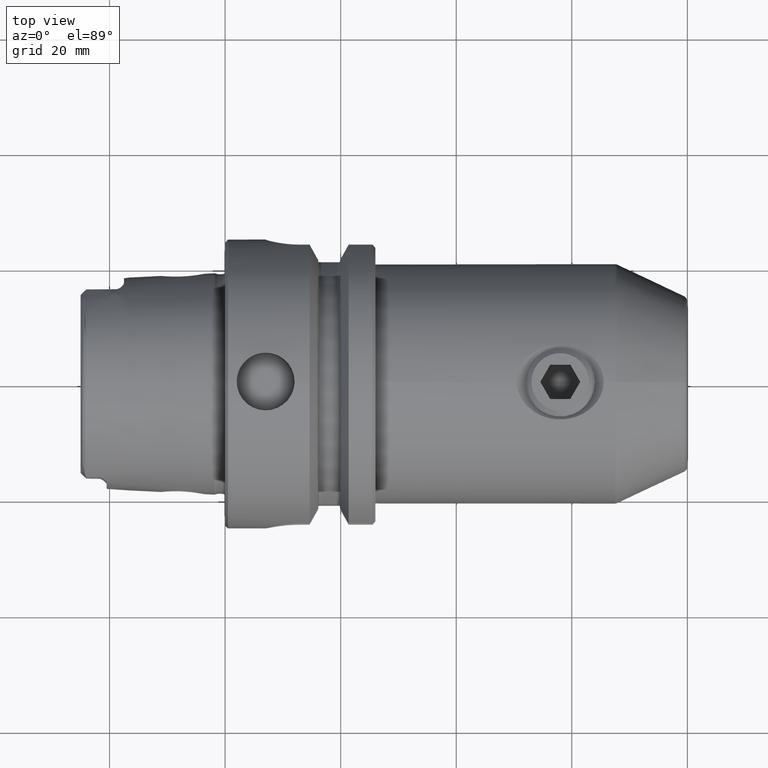
[diagram: clean part render]
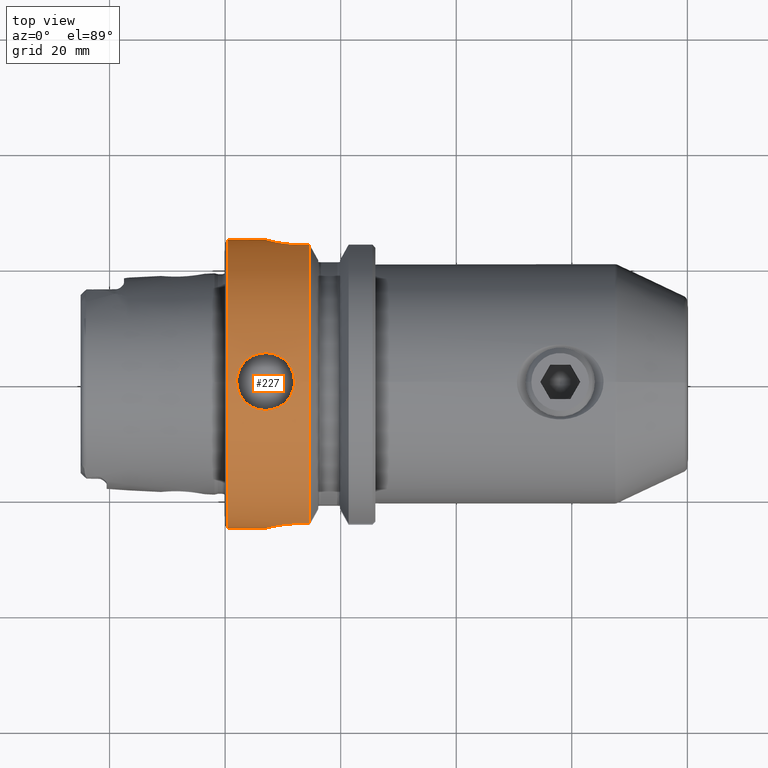
[diagram: same view with one face highlighted and labeled with its STEP entity id]
A machine part, top view. The second image highlights one B-rep face of the part: STEP entity #227.
In plain terms, the highlighted cylindrical surface (bore or boss wall) has radius 25 mm, axis along (1, -0, -0).
Its self-contained STEP definition (entity closure, byte-faithful):
#227 = ADVANCED_FACE( '', ( #585, #586, #587, #588 ), #589, .T. );
#585 = FACE_OUTER_BOUND( '', #1112, .T. );
#586 = FACE_BOUND( '', #1113, .T. );
#587 = FACE_OUTER_BOUND( '', #1114, .T. );
#588 = FACE_BOUND( '', #1115, .T. );
#589 = CYLINDRICAL_SURFACE( '', #1116, 25.0000000000000 );
#1112 = EDGE_LOOP( '', ( #1722 ) );
#1113 = EDGE_LOOP( '', ( #1723 ) );
#1114 = EDGE_LOOP( '', ( #1724, #1725, #1726, #1727, #1728, #1729, #1730, #1731, #1732, #1733, #1734, #1735, #1736, #1737 ) );
#1115 = EDGE_LOOP( '', ( #1738 ) );
#1116 = AXIS2_PLACEMENT_3D( '', #1739, #1740, #1741 );
#1722 = ORIENTED_EDGE( '', *, *, #2922, .F. );
#1723 = ORIENTED_EDGE( '', *, *, #2923, .F. );
#1724 = ORIENTED_EDGE( '', *, *, #2924, .T. );
#1725 = ORIENTED_EDGE( '', *, *, #2925, .T. );
#1726 = ORIENTED_EDGE( '', *, *, #2901, .F. );
#1727 = ORIENTED_EDGE( '', *, *, #2848, .F. );
#1728 = ORIENTED_EDGE( '', *, *, #2926, .F. );
#1729 = ORIENTED_EDGE( '', *, *, #2927, .F. );
#1730 = ORIENTED_EDGE( '', *, *, #2928, .F. );
#1731 = ORIENTED_EDGE( '', *, *, #2929, .T. );
#1732 = ORIENTED_EDGE( '', *, *, #2930, .T. );
#1733 = ORIENTED_EDGE( '', *, *, #2931, .T. );
#1734 = ORIENTED_EDGE( '', *, *, #2932, .T. );
#1735 = ORIENTED_EDGE( '', *, *, #2933, .T. );
#1736 = ORIENTED_EDGE( '', *, *, #2934, .T. );
#1737 = ORIENTED_EDGE( '', *, *, #2871, .T. );
#1738 = ORIENTED_EDGE( '', *, *, #2881, .F. );
#1739 = CARTESIAN_POINT( '', ( -60.0000000000000, 0.000000000000000, 0.000000000000000 ) );
#1740 = DIRECTION( '', ( 1.00000000000000, -0.000000000000000, -0.000000000000000 ) );
#1741 = DIRECTION( '', ( 0.000000000000000, 0.000000000000000, 1.00000000000000 ) );
#2848 = EDGE_CURVE( '', #3350, #3353, #3354, .T. );
#2871 = EDGE_CURVE( '', #3394, #3395, #3396, .T. );
#2881 = EDGE_CURVE( '', #3412, #3412, #3413, .T. );
#2901 = EDGE_CURVE( '', #3353, #3447, #3448, .F. );
#2922 = EDGE_CURVE( '', #3482, #3482, #3483, .T. );
#2923 = EDGE_CURVE( '', #3484, #3484, #3485, .T. );
#2924 = EDGE_CURVE( '', #3395, #3486, #3487, .F. );
#2925 = EDGE_CURVE( '', #3486, #3447, #3488, .T. );
#2926 = EDGE_CURVE( '', #3489, #3350, #3490, .F. );
#2927 = EDGE_CURVE( '', #3491, #3489, #3492, .T. );
#2928 = EDGE_CURVE( '', #3493, #3491, #3494, .T. );
#2929 = EDGE_CURVE( '', #3493, #3495, #3496, .T. );
#2930 = EDGE_CURVE( '', #3495, #3497, #3498, .T. );
#2931 = EDGE_CURVE( '', #3497, #3499, #3500, .T. );
#2932 = EDGE_CURVE( '', #3499, #3501, #3502, .F. );
#2933 = EDGE_CURVE( '', #3501, #3503, #3504, .T. );
#2934 = EDGE_CURVE( '', #3503, #3394, #3505, .T. );
#3350 = VERTEX_POINT( '', #4196 );
#3353 = VERTEX_POINT( '', #4200 );
#3354 = B_SPLINE_CURVE_WITH_KNOTS( '', 3, ( #4201, #4202, #4203, #4204, #4205, #4206, #4207, #4208, #4209, #4210, #4211, #4212, #4213, #4214, #4215, #4216, #4217, #4218, #4219, #4220 ), .UNSPECIFIED., .F., .F., ( 4, 2, 2, 2, 2, 2, 2, 2, 2, 4 ), ( 0.000000000000000, 0.00117891311180918, 0.00176836966771376, 0.00235782622361835, 0.00353673933542753, 0.00471565244723671, 0.00589456555904589, 0.00707347867085507, 0.00825239178266425, 0.00943130489447343 ), .UNSPECIFIED. );
#3394 = VERTEX_POINT( '', #4285 );
#3395 = VERTEX_POINT( '', #4286 );
#3396 = B_SPLINE_CURVE_WITH_KNOTS( '', 3, ( #4287, #4288, #4289, #4290, #4291, #4292, #4293, #4294, #4295, #4296, #4297, #4298, #4299, #4300, #4301, #4302, #4303, #4304, #4305, #4306, #4307, #4308, #4309, #4310, #4311, #4312, #4313, #4314, #4315, #4316, #4317, #4318, #4319, #4320, #4321, #4322, #4323, #4324, #4325, #4326 ), .UNSPECIFIED., .F., .F., ( 4, 2, 2, 2, 2, 2, 2, 2, 2, 2, 2, 2, 2, 2, 2, 2, 2, 2, 2, 4 ), ( 0.000000000000000, 0.00117637028899753, 0.00176455543349629, 0.00235274057799506, 0.00352911086699259, 0.00470548115599012, 0.00588185144498766, 0.00705822173398519, 0.00764640687848396, 0.00823459202298272, 0.00941096231198026, 0.0105873326009778, 0.0117637028899753, 0.0123518880344741, 0.0129400731789729, 0.0141164434679704, 0.0152928137569679, 0.0164691840459655, 0.0176455543349630, 0.0188219246239605 ), .UNSPECIFIED. );
#3412 = VERTEX_POINT( '', #4346 );
#3413 = B_SPLINE_CURVE_WITH_KNOTS( '', 3, ( #4347, #4348, #4349, #4350, #4351, #4352, #4353, #4354, #4355, #4356, #4357, #4358, #4359, #4360, #4361, #4362, #4363, #4364, #4365, #4366, #4367, #4368, #4369, #4370, #4371, #4372, #4373, #4374, #4375, #4376, #4377, #4378, #4379, #4380, #4381, #4382, #4383, #4384, #4385, #4386, #4387, #4388, #4389, #4390, #4391, #4392, #4393, #4394, #4395, #4396, #4397, #4398, #4399, #4400, #4401, #4402, #4403, #4404, #4405, #4406, #4407, #4408, #4409, #4410, #4411, #4412, #4413, #4414, #4415, #4416, #4417, #4418 ), .UNSPECIFIED., .T., .F., ( 2, 2, 2, 2, 2, 2, 2, 2, 2, 2, 2, 2, 2, 2, 2, 2, 2, 2, 2, 2, 2, 2, 2, 2, 2, 2, 2, 2, 2, 2, 2, 2, 2, 2, 2, 2, 2, 2 ), ( -0.000979360891067991, 0.000000000000000, 0.000979360891067992, 0.00195872178213598, 0.00293808267320398, 0.00391744356427197, 0.00489680445533996, 0.00587616534640795, 0.00685552623747595, 0.00783488712854394, 0.00881424801961193, 0.00979360891067992, 0.0102832893562139, 0.0107729698017479, 0.0117523306928159, 0.0127316915838839, 0.0137110524749519, 0.0146904133660199, 0.0156697742570879, 0.0166491351481559, 0.0176284960392239, 0.0181181764847579, 0.0186078569302919, 0.0195872178213599, 0.0205665787124279, 0.0215459396034959, 0.0225253004945639, 0.0235046613856319, 0.0244840222766999, 0.0254633831677679, 0.0264427440588359, 0.0269324245043699, 0.0274221049499039, 0.0284014658409719, 0.0293808267320399, 0.0303601876231078, 0.0313395485141758, 0.0323189094052438 ), .UNSPECIFIED. );
#3447 = VERTEX_POINT( '', #4485 );
#3448 = LINE( '', #4486, #4487 );
#3482 = VERTEX_POINT( '', #4565 );
#3483 = CIRCLE( '', #4566, 25.0000000000000 );
#3484 = VERTEX_POINT( '', #4567 );
#3485 = B_SPLINE_CURVE_WITH_KNOTS( '', 3, ( #4568, #4569, #4570, #4571, #4572, #4573, #4574, #4575, #4576, #4577, #4578, #4579, #4580, #4581, #4582, #4583, #4584, #4585, #4586, #4587, #4588, #4589, #4590, #4591, #4592, #4593, #4594, #4595, #4596, #4597, #4598, #4599, #4600, #4601, #4602, #4603, #4604, #4605, #4606, #4607, #4608, #4609, #4610, #4611, #4612, #4613, #4614, #4615, #4616, #4617, #4618, #4619, #4620, #4621, #4622, #4623, #4624, #4625, #4626, #4627, #4628, #4629, #4630, #4631, #4632, #4633, #4634, #4635, #4636, #4637, #4638, #4639 ), .UNSPECIFIED., .T., .F., ( 2, 2, 2, 2, 2, 2, 2, 2, 2, 2, 2, 2, 2, 2, 2, 2, 2, 2, 2, 2, 2, 2, 2, 2, 2, 2, 2, 2, 2, 2, 2, 2, 2, 2, 2, 2, 2, 2 ), ( -0.000979364598487321, 0.000000000000000, 0.000979364598487329, 0.00195872919697466, 0.00293809379546199, 0.00391745839394932, 0.00489682299243664, 0.00587618759092397, 0.00685555218941130, 0.00783491678789863, 0.00881428138638596, 0.00979364598487329, 0.0102833282841170, 0.0107730105833606, 0.0117523751818479, 0.0127317397803353, 0.0137111043788226, 0.0146904689773099, 0.0156698335757972, 0.0166491981742846, 0.0176285627727719, 0.0181182450720155, 0.0186079273712592, 0.0195872919697465, 0.0205666565682338, 0.0215460211667212, 0.0225253857652085, 0.0235047503636958, 0.0244841149621831, 0.0254634795606705, 0.0264428441591578, 0.0269325264584014, 0.0274222087576451, 0.0284015733561324, 0.0293809379546197, 0.0303603025531071, 0.0313396671515944, 0.0323190317500817 ), .UNSPECIFIED. );
#3486 = VERTEX_POINT( '', #4640 );
#3487 = LINE( '', #4641, #4642 );
#3488 = CIRCLE( '', #4643, 25.0000000000000 );
#3489 = VERTEX_POINT( '', #4644 );
#3490 = CIRCLE( '', #4645, 25.0000000000000 );
#3491 = VERTEX_POINT( '', #4646 );
#3492 = B_SPLINE_CURVE_WITH_KNOTS( '', 3, ( #4647, #4648, #4649, #4650, #4651, #4652, #4653, #4654, #4655, #4656, #4657, #4658, #4659, #4660, #4661, #4662, #4663, #4664, #4665, #4666, #4667, #4668, #4669, #4670 ), .UNSPECIFIED., .F., .F., ( 4, 2, 2, 2, 2, 2, 2, 2, 2, 2, 2, 4 ), ( 0.000000000000000, 0.00117891312954168, 0.00176836969431252, 0.00235782625908336, 0.00353673938862505, 0.00412619595339589, 0.00471565251816673, 0.00589456564770842, 0.00707347877725011, 0.00766293534202096, 0.00825239190679180, 0.00943130503633349 ), .UNSPECIFIED. );
#3493 = VERTEX_POINT( '', #4671 );
#3494 = LINE( '', #4672, #4673 );
#3495 = VERTEX_POINT( '', #4674 );
#3496 = CIRCLE( '', #4675, 25.0000000000000 );
#3497 = VERTEX_POINT( '', #4676 );
#3498 = LINE( '', #4677, #4678 );
#3499 = VERTEX_POINT( '', #4679 );
#3500 = B_SPLINE_CURVE_WITH_KNOTS( '', 3, ( #4680, #4681, #4682, #4683, #4684, #4685, #4686, #4687, #4688, #4689, #4690, #4691, #4692, #4693, #4694, #4695, #4696, #4697 ), .UNSPECIFIED., .F., .F., ( 4, 2, 2, 2, 2, 2, 2, 2, 4 ), ( 0.000000000000000, 0.00219694204812870, 0.00329541307219305, 0.00439388409625739, 0.00494311960828957, 0.00549235512032174, 0.00659082614438609, 0.00768929716845045, 0.00878776819251480 ), .UNSPECIFIED. );
#3501 = VERTEX_POINT( '', #4698 );
#3502 = LINE( '', #4699, #4700 );
#3503 = VERTEX_POINT( '', #4701 );
#3504 = CIRCLE( '', #4702, 25.0000000000000 );
#3505 = LINE( '', #4703, #4704 );
#4196 = CARTESIAN_POINT( '', ( 7.00000000000000, 24.9799919935936, 1.00000000000000 ) );
#4200 = CARTESIAN_POINT( '', ( 13.0000000000000, 24.0000000000000, 7.00000000000000 ) );
#4201 = CARTESIAN_POINT( '', ( 7.00000000000000, 24.9799919935936, 1.00000000000000 ) );
#4202 = CARTESIAN_POINT( '', ( 7.00000000000000, 24.9640411919383, 1.39845089764102 ) );
#4203 = CARTESIAN_POINT( '', ( 7.03929096680509, 24.9388490887991, 1.78955523786881 ) );
#4204 = CARTESIAN_POINT( '', ( 7.15423464523963, 24.8885556055390, 2.36579274785663 ) );
#4205 = CARTESIAN_POINT( '', ( 7.20195553555158, 24.8697049251876, 2.55612318158105 ) );
#4206 = CARTESIAN_POINT( '', ( 7.31656731252942, 24.8280500481495, 2.93324386846715 ) );
#4207 = CARTESIAN_POINT( '', ( 7.38370150108886, 24.8051832802825, 3.12030460715597 ) );
#4208 = CARTESIAN_POINT( '', ( 7.60949732806829, 24.7327585600738, 3.66392244029181 ) );
#4209 = CARTESIAN_POINT( '', ( 7.79339238807553, 24.6789460310943, 4.00729541604705 ) );
#4210 = CARTESIAN_POINT( '', ( 8.22726629366381, 24.5646332199412, 4.65699350728570 ) );
#4211 = CARTESIAN_POINT( '', ( 8.47887138358239, 24.5039012047605, 4.96367992907987 ) );
#4212 = CARTESIAN_POINT( '', ( 9.02860603845774, 24.3858809976008, 5.51435405662942 ) );
#4213 = CARTESIAN_POINT( '', ( 9.32880408177580, 24.3279620033694, 5.76205744388620 ) );
#4214 = CARTESIAN_POINT( '', ( 9.98225993542232, 24.2198547725212, 6.20078027525685 ) );
#4215 = CARTESIAN_POINT( '', ( 10.3294248970667, 24.1708407995335, 6.38707513194460 ) );
#4216 = CARTESIAN_POINT( '', ( 11.0503577007603, 24.0893578752579, 6.68783304630494 ) );
#4217 = CARTESIAN_POINT( '', ( 11.4288457242030, 24.0563734299826, 6.80422767115098 ) );
#4218 = CARTESIAN_POINT( '', ( 12.2072268415586, 24.0115860352260, 6.96062877020242 ) );
#4219 = CARTESIAN_POINT( '', ( 12.6011857110680, 24.0000000000000, 7.00000000000000 ) );
#4220 = CARTESIAN_POINT( '', ( 13.0000000000000, 24.0000000000000, 7.00000000000000 ) );
#4285 = CARTESIAN_POINT( '', ( 13.0000000000000, -24.2693221990232, -6.00000000000000 ) );
#4286 = CARTESIAN_POINT( '', ( 13.0000000000000, -24.2693221990232, 6.00000000000000 ) );
#4287 = CARTESIAN_POINT( '', ( 13.0000000000000, -24.2693221990232, -6.00000000000000 ) );
#4288 = CARTESIAN_POINT( '', ( 12.6021122819343, -24.2693221990232, -6.00000000000000 ) );
#4289 = CARTESIAN_POINT( '', ( 12.2111745675887, -24.2791039342054, -5.96081601219724 ) );
#4290 = CARTESIAN_POINT( '', ( 11.6346942322366, -24.3069377012155, -5.84588174991878 ) );
#4291 = CARTESIAN_POINT( '', ( 11.4442003753937, -24.3184097075743, -5.79813974211717 ) );
#4292 = CARTESIAN_POINT( '', ( 11.0666026363187, -24.3454834332655, -5.68338909235975 ) );
#4293 = CARTESIAN_POINT( '', ( 10.8793265384226, -24.3611295075352, -5.61616820551420 ) );
#4294 = CARTESIAN_POINT( '', ( 10.3350220172668, -24.4125297226138, -5.39001830466428 ) );
#4295 = CARTESIAN_POINT( '', ( 9.99104135592499, -24.4530129696771, -5.20571474040278 ) );
#4296 = CARTESIAN_POINT( '', ( 9.34003647926585, -24.5416247250777, -4.77053090411285 ) );
#4297 = CARTESIAN_POINT( '', ( 9.03297387967139, -24.5899086375458, -4.51825006237376 ) );
#4298 = CARTESIAN_POINT( '', ( 8.48182466831999, -24.6848175786511, -3.96711123334199 ) );
#4299 = CARTESIAN_POINT( '', ( 8.23396171120962, -24.7319418029731, -3.66610386269514 ) );
#4300 = CARTESIAN_POINT( '', ( 7.79521750488614, -24.8202253252640, -3.01092638250098 ) );
#4301 = CARTESIAN_POINT( '', ( 7.60971822757567, -24.8602850541493, -2.66408851631889 ) );
#4302 = CARTESIAN_POINT( '', ( 7.38482843913319, -24.9103354153416, -2.12319915322626 ) );
#4303 = CARTESIAN_POINT( '', ( 7.31855615216651, -24.9254023909971, -1.93904096858270 ) );
#4304 = CARTESIAN_POINT( '', ( 7.20376432633225, -24.9518181329885, -1.56279752022728 ) );
#4305 = CARTESIAN_POINT( '', ( 7.15505799601049, -24.9632115511614, -1.36955991967854 ) );
#4306 = CARTESIAN_POINT( '', ( 7.03889522960118, -24.9905803405167, -0.788286452180649 ) );
#4307 = CARTESIAN_POINT( '', ( 7.00034510757512, -24.9999171742116, -0.398084572869565 ) );
#4308 = CARTESIAN_POINT( '', ( 6.99965946162707, -25.0000817291801, 0.387612666089490 ) );
#4309 = CARTESIAN_POINT( '', ( 7.03885020027883, -24.9905931050239, 0.786793124935592 ) );
#4310 = CARTESIAN_POINT( '', ( 7.19234604247193, -24.9544240826460, 1.55740356548014 ) );
#4311 = CARTESIAN_POINT( '', ( 7.30594865881724, -24.9279079932899, 1.93212783883210 ) );
#4312 = CARTESIAN_POINT( '', ( 7.53220431556668, -24.8775276848039, 2.47831495550832 ) );
#4313 = CARTESIAN_POINT( '', ( 7.61724853704908, -24.8589184568888, 2.65791405465428 ) );
#4314 = CARTESIAN_POINT( '', ( 7.80245583970853, -24.8194737823453, 3.00400651391589 ) );
#4315 = CARTESIAN_POINT( '', ( 7.90299376460525, -24.7985526216897, 3.17152105637287 ) );
#4316 = CARTESIAN_POINT( '', ( 8.22799522889654, -24.7331152062105, 3.65787424103720 ) );
#4317 = CARTESIAN_POINT( '', ( 8.47751534396865, -24.6855807604294, 3.96254917781799 ) );
#4318 = CARTESIAN_POINT( '', ( 9.03344023101425, -24.5898073684318, 4.51896747606450 ) );
#4319 = CARTESIAN_POINT( '', ( 9.33460982049830, -24.5424534181310, 4.76625046522088 ) );
#4320 = CARTESIAN_POINT( '', ( 9.98274246906486, -24.4540544209161, 5.20080625069046 ) );
#4321 = CARTESIAN_POINT( '', ( 10.3339254613128, -24.4126619277702, 5.38941350238185 ) );
#4322 = CARTESIAN_POINT( '', ( 11.0579744981070, -24.3442307745339, 5.69054200366620 ) );
#4323 = CARTESIAN_POINT( '', ( 11.4318485591155, -24.3168762920238, 5.80481671140037 ) );
#4324 = CARTESIAN_POINT( '', ( 12.2038044883427, -24.2793183790819, 5.95995542782981 ) );
#4325 = CARTESIAN_POINT( '', ( 12.6021039865714, -24.2693221990232, 6.00000000000000 ) );
#4326 = CARTESIAN_POINT( '', ( 13.0000000000000, -24.2693221990232, 6.00000000000000 ) );
#4346 = CARTESIAN_POINT( '', ( 6.80000000000000, -14.6334808780044, -20.2697123164854 ) );
#4347 = CARTESIAN_POINT( '', ( 7.13122104582572, -14.6334808780044, -20.2697123164854 ) );
#4348 = CARTESIAN_POINT( '', ( 6.46877895417427, -14.6334808780044, -20.2697123164854 ) );
#4349 = CARTESIAN_POINT( '', ( 6.14326439447636, -14.6065423656304, -20.2892372398085 ) );
#4350 = CARTESIAN_POINT( '', ( 5.50312742286957, -14.5008083336008, -20.3649401011729 ) );
#4351 = CARTESIAN_POINT( '', ( 5.18513046091837, -14.4206748342685, -20.4220585413564 ) );
#4352 = CARTESIAN_POINT( '', ( 4.58006210374551, -14.2110999295137, -20.5684461380939 ) );
#4353 = CARTESIAN_POINT( '', ( 4.29321867839556, -14.0825645886041, -20.6570863291469 ) );
#4354 = CARTESIAN_POINT( '', ( 3.75035765628694, -13.7770511605254, -20.8620876789045 ) );
#4355 = CARTESIAN_POINT( '', ( 3.49399486944020, -13.5988441093599, -20.9791662752415 ) );
#4356 = CARTESIAN_POINT( '', ( 3.03410569538584, -13.2065964887779, -21.2282780247834 ) );
#4357 = CARTESIAN_POINT( '', ( 2.82742985200386, -12.9910998853656, -21.3613402462229 ) );
#4358 = CARTESIAN_POINT( '', ( 2.46186587003500, -12.5183523605410, -21.6417741306896 ) );
#4359 = CARTESIAN_POINT( '', ( 2.30706357609494, -12.2657240577552, -21.7863014500087 ) );
#4360 = CARTESIAN_POINT( '', ( 2.05740678826398, -11.7367027125196, -22.0757950472815 ) );
#4361 = CARTESIAN_POINT( '', ( 1.96093765863581, -11.4563912444831, -22.2228603253524 ) );
#4362 = CARTESIAN_POINT( '', ( 1.83215631845295, -10.8781668073801, -22.5115505529408 ) );
#4363 = CARTESIAN_POINT( '', ( 1.80019450431240, -10.5846201904319, -22.6511091724984 ) );
#4364 = CARTESIAN_POINT( '', ( 1.79980724876184, -9.98854088148659, -22.9202090387285 ) );
#4365 = CARTESIAN_POINT( '', ( 1.83246800453189, -9.68298725829873, -23.0508768959118 ) );
#4366 = CARTESIAN_POINT( '', ( 1.96039550803008, -9.08757787156661, -23.2920393341388 ) );
#4367 = CARTESIAN_POINT( '', ( 2.05503812057665, -8.79554707323738, -23.4036498333958 ) );
#4368 = CARTESIAN_POINT( '', ( 2.24343344970803, -8.36664233226749, -23.5589136961861 ) );
#4369 = CARTESIAN_POINT( '', ( 2.31435222483654, -8.22479001322304, -23.6087666448708 ) );
#4370 = CARTESIAN_POINT( '', ( 2.46889244305688, -7.95033022718518, -23.7026007546067 ) );
#4371 = CARTESIAN_POINT( '', ( 2.55277620456900, -7.81699814142037, -23.7468534046010 ) );
#4372 = CARTESIAN_POINT( '', ( 2.82388575336583, -7.42865595358557, -23.8723500513369 ) );
#4373 = CARTESIAN_POINT( '', ( 3.03147773151424, -7.18411113906587, -23.9466836779491 ) );
#4374 = CARTESIAN_POINT( '', ( 3.49610187181847, -6.73314697671131, -24.0773720289447 ) );
#4375 = CARTESIAN_POINT( '', ( 3.74763310843086, -6.53166689930937, -24.1323646665495 ) );
#4376 = CARTESIAN_POINT( '', ( 4.28826466935698, -6.17658906370883, -24.2256773779586 ) );
#4377 = CARTESIAN_POINT( '', ( 4.58095686211795, -6.02177694400457, -24.2642635668501 ) );
#4378 = CARTESIAN_POINT( '', ( 5.18520799099595, -5.77376294067995, -24.3244721527466 ) );
#4379 = CARTESIAN_POINT( '', ( 5.49684764963276, -5.67950150142711, -24.3464077029926 ) );
#4380 = CARTESIAN_POINT( '', ( 6.13936270007710, -5.55162472217795, -24.3758849744815 ) );
#4381 = CARTESIAN_POINT( '', ( 6.47122604112998, -5.51886275436571, -24.3832350994875 ) );
#4382 = CARTESIAN_POINT( '', ( 7.12470571151705, -5.51859811423608, -24.3832949962050 ) );
#4383 = CARTESIAN_POINT( '', ( 7.45004394852547, -5.55006426691656, -24.3762402688714 ) );
#4384 = CARTESIAN_POINT( '', ( 8.09783344029686, -5.67790831036785, -24.3467792578753 ) );
#4385 = CARTESIAN_POINT( '', ( 8.41203447536193, -5.77292058600507, -24.3246681009737 ) );
#4386 = CARTESIAN_POINT( '', ( 8.86357779997136, -5.95782444746973, -24.2797930475497 ) );
#4387 = CARTESIAN_POINT( '', ( 9.01111483032214, -6.02664043841760, -24.2628472118017 ) );
#4388 = CARTESIAN_POINT( '', ( 9.30015477732854, -6.17873698723887, -24.2245610701149 ) );
#4389 = CARTESIAN_POINT( '', ( 9.44218279782360, -6.26243865308288, -24.2031066271853 ) );
#4390 = CARTESIAN_POINT( '', ( 9.85046890166687, -6.53007974768491, -24.1328011563305 ) );
#4391 = CARTESIAN_POINT( '', ( 10.1016867284071, -6.73147742357677, -24.0778178199181 ) );
#4392 = CARTESIAN_POINT( '', ( 10.5630172038534, -7.17829900604809, -23.9484054302799 ) );
#4393 = CARTESIAN_POINT( '', ( 10.7738738406809, -7.42580918133404, -23.8732380182550 ) );
#4394 = CARTESIAN_POINT( '', ( 11.1361362822585, -7.94399924171070, -23.7058434045604 ) );
#4395 = CARTESIAN_POINT( '', ( 11.2901421062690, -8.21667070191192, -23.6131081369269 ) );
#4396 = CARTESIAN_POINT( '', ( 11.5425568461222, -8.78884968601462, -23.4061674459212 ) );
#4397 = CARTESIAN_POINT( '', ( 11.6387516013158, -9.08488040005751, -23.2930752587331 ) );
#4398 = CARTESIAN_POINT( '', ( 11.7667579995030, -9.67812885600923, -23.0529006578095 ) );
#4399 = CARTESIAN_POINT( '', ( 11.7997671225247, -9.97973555419895, -22.9240895530995 ) );
#4400 = CARTESIAN_POINT( '', ( 11.8002304160783, -10.5816332182120, -22.6525504525539 ) );
#4401 = CARTESIAN_POINT( '', ( 11.7680770190559, -10.8753943994950, -22.5128549753255 ) );
#4402 = CARTESIAN_POINT( '', ( 11.6410206390653, -11.4492938613080, -22.2264822354330 ) );
#4403 = CARTESIAN_POINT( '', ( 11.5444294998450, -11.7321947433375, -22.0782108769858 ) );
#4404 = CARTESIAN_POINT( '', ( 11.2941375912797, -12.2637882416129, -21.7874112043888 ) );
#4405 = CARTESIAN_POINT( '', ( 11.1408126131390, -12.5141534748571, -21.6441907486165 ) );
#4406 = CARTESIAN_POINT( '', ( 10.8683604332012, -12.8675798965370, -21.4346482405224 ) );
#4407 = CARTESIAN_POINT( '', ( 10.7698677846042, -12.9821740073748, -21.3653795240641 ) );
#4408 = CARTESIAN_POINT( '', ( 10.5622403205222, -13.1996057516315, -21.2317378508345 ) );
#4409 = CARTESIAN_POINT( '', ( 10.4528703676981, -13.3028748602892, -21.1671209878576 ) );
#4410 = CARTESIAN_POINT( '', ( 10.1084130925614, -13.5970304963180, -20.9803413588685 ) );
#4411 = CARTESIAN_POINT( '', ( 9.85690556483447, -13.7725548805307, -20.8650745643236 ) );
#4412 = CARTESIAN_POINT( '', ( 9.30934500536226, -14.0815231792236, -20.6578147311133 ) );
#4413 = CARTESIAN_POINT( '', ( 9.02194586127745, -14.2101509965214, -20.5690986575826 ) );
#4414 = CARTESIAN_POINT( '', ( 8.42065659506712, -14.4189205757952, -20.4232940623743 ) );
#4415 = CARTESIAN_POINT( '', ( 8.10348593585539, -14.4994864422967, -20.3658838851226 ) );
#4416 = CARTESIAN_POINT( '', ( 7.45813105099270, -14.6065385794067, -20.2892425743532 ) );
#4417 = CARTESIAN_POINT( '', ( 7.13122104582572, -14.6334808780044, -20.2697123164854 ) );
#4418 = CARTESIAN_POINT( '', ( 6.46877895417427, -14.6334808780044, -20.2697123164854 ) );
#4485 = CARTESIAN_POINT( '', ( 14.6225005302953, 24.0000000000000, 7.00000000000000 ) );
#4486 = CARTESIAN_POINT( '', ( -60.0000000000000, 24.0000000000000, 7.00000000000000 ) );
#4487 = VECTOR( '', #6177, 1000.00000000000 );
#4565 = CARTESIAN_POINT( '', ( 0.499999605057380, 0.000000000000000, 25.0000000000000 ) );
#4566 = AXIS2_PLACEMENT_3D( '', #6202, #6203, #6204 );
#4567 = CARTESIAN_POINT( '', ( 2.00000000000000, -4.81482486096809E-032, 25.0000000000000 ) );
#4568 = CARTESIAN_POINT( '', ( 2.00000000000000, 0.331218264497943, 25.0000000000000 ) );
#4569 = CARTESIAN_POINT( '', ( 2.00000000000000, -0.331218264497946, 25.0000000000000 ) );
#4570 = CARTESIAN_POINT( '', ( 2.03258504807973, -0.656737326480627, 24.9934251877156 ) );
#4571 = CARTESIAN_POINT( '', ( 2.16010503590205, -1.29689319415800, 24.9683935120559 ) );
#4572 = CARTESIAN_POINT( '', ( 2.25664625666029, -1.61490516863432, 24.9496325176650 ) );
#4573 = CARTESIAN_POINT( '', ( 2.50791225774537, -2.22001602562287, 24.9030843534729 ) );
#4574 = CARTESIAN_POINT( '', ( 2.66154900021348, -2.50687701389009, 24.8754933160011 ) );
#4575 = CARTESIAN_POINT( '', ( 3.02437517457134, -3.04975354541224, 24.8147859831478 ) );
#4576 = CARTESIAN_POINT( '', ( 3.23498864536442, -3.30612560317210, 24.7815149948859 ) );
#4577 = CARTESIAN_POINT( '', ( 3.69500787321935, -3.76600637896471, 24.7158076521748 ) );
#4578 = CARTESIAN_POINT( '', ( 3.94616247408953, -3.97266505211903, 24.6830363376834 ) );
#4579 = CARTESIAN_POINT( '', ( 4.49238523189744, -4.33818619076923, 24.6214234161623 ) );
#4580 = CARTESIAN_POINT( '', ( 4.78208480055210, -4.49297246092505, 24.5932781000117 ) );
#4581 = CARTESIAN_POINT( '', ( 5.38331830061845, -4.74260367830349, 24.5463610254084 ) );
#4582 = CARTESIAN_POINT( '', ( 5.69928679645506, -4.83906489347201, 24.5272860870967 ) );
#4583 = CARTESIAN_POINT( '', ( 6.34506668744434, -4.96784321785765, 24.5015274137003 ) );
#4584 = CARTESIAN_POINT( '', ( 6.67002811021723, -4.99980445821985, 24.4949373426232 ) );
#4585 = CARTESIAN_POINT( '', ( 7.32401902939280, -5.00019376995265, 24.4948578747131 ) );
#4586 = CARTESIAN_POINT( '', ( 7.65627448928626, -4.96753495796032, 24.5015887485008 ) );
#4587 = CARTESIAN_POINT( '', ( 8.29817383949487, -4.83961201402519, 24.5271769739797 ) );
#4588 = CARTESIAN_POINT( '', ( 8.61025158444705, -4.74497458614481, 24.5459068983038 ) );
#4589 = CARTESIAN_POINT( '', ( 9.06503174439931, -4.55659603121856, 24.5813245153536 ) );
#4590 = CARTESIAN_POINT( '', ( 9.21482152620997, -4.48568586843926, 24.5944055239553 ) );
#4591 = CARTESIAN_POINT( '', ( 9.50356282406997, -4.33116442648088, 24.6220871474752 ) );
#4592 = CARTESIAN_POINT( '', ( 9.64328722675900, -4.24729023790514, 24.6367392921172 ) );
#4593 = CARTESIAN_POINT( '', ( 10.0488599894657, -3.97620669448179, 24.6824506395491 ) );
#4594 = CARTESIAN_POINT( '', ( 10.3023458429760, -3.76861847725485, 24.7154320049668 ) );
#4595 = CARTESIAN_POINT( '', ( 10.7671496836045, -3.30402127036824, 24.7818180903702 ) );
#4596 = CARTESIAN_POINT( '', ( 10.9734294467531, -3.05249201994411, 24.8144370312457 ) );
#4597 = CARTESIAN_POINT( '', ( 11.3354944639387, -2.51183933668221, 24.8749805197145 ) );
#4598 = CARTESIAN_POINT( '', ( 11.4924959878474, -2.21912224601710, 24.9031590067615 ) );
#4599 = CARTESIAN_POINT( '', ( 11.7433475589033, -1.61483054189554, 24.9496323495914 ) );
#4600 = CARTESIAN_POINT( '', ( 11.8382956898535, -1.30316978681492, 24.9680821141127 ) );
#4601 = CARTESIAN_POINT( '', ( 11.9669843441575, -0.660623342470303, 24.9933381673942 ) );
#4602 = CARTESIAN_POINT( '', ( 11.9998671846899, -0.328767358317270, 24.9999734369401 ) );
#4603 = CARTESIAN_POINT( '', ( 12.0001319942603, 0.324715075733492, 25.0000263988500 ) );
#4604 = CARTESIAN_POINT( '', ( 11.9685486207064, 0.650061176874780, 24.9936491298041 ) );
#4605 = CARTESIAN_POINT( '', ( 11.8398931709559, 1.29787866294898, 24.9683917650636 ) );
#4606 = CARTESIAN_POINT( '', ( 11.7441929642756, 1.61208035815309, 24.9497967381759 ) );
#4607 = CARTESIAN_POINT( '', ( 11.5571829243656, 2.06364393361029, 24.9151392491519 ) );
#4608 = CARTESIAN_POINT( '', ( 11.4874819264791, 2.21118824707178, 24.9024440903389 ) );
#4609 = CARTESIAN_POINT( '', ( 11.3330863982288, 2.50024194228269, 24.8750852333513 ) );
#4610 = CARTESIAN_POINT( '', ( 11.2479588574930, 2.64228025283104, 24.8603521914280 ) );
#4611 = CARTESIAN_POINT( '', ( 10.9750572812948, 3.05059292076849, 24.8146913520421 ) );
#4612 = CARTESIAN_POINT( '', ( 10.7688524559800, 3.30181326609404, 24.7820966602911 ) );
#4613 = CARTESIAN_POINT( '', ( 10.3083406206576, 3.76312397042782, 24.7162534318484 ) );
#4614 = CARTESIAN_POINT( '', ( 10.0518244914912, 3.97396310771976, 24.6828149056625 ) );
#4615 = CARTESIAN_POINT( '', ( 9.51066676061885, 4.33619279155190, 24.6217620515512 ) );
#4616 = CARTESIAN_POINT( '', ( 9.22400506376000, 4.49018039331244, 24.5937952956282 ) );
#4617 = CARTESIAN_POINT( '', ( 8.61739597917421, 4.74256773643442, 24.5463752573182 ) );
#4618 = CARTESIAN_POINT( '', ( 8.30106630036540, 4.83875624872190, 24.5273459177313 ) );
#4619 = CARTESIAN_POINT( '', ( 7.66156781370549, 4.96675584062280, 24.5017467994067 ) );
#4620 = CARTESIAN_POINT( '', ( 7.33369610822498, 4.99976570306816, 24.4949452534803 ) );
#4621 = CARTESIAN_POINT( '', ( 6.67336248373444, 5.00023180574551, 24.4948501106944 ) );
#4622 = CARTESIAN_POINT( '', ( 6.34814283873684, 4.96807796923921, 24.5014774705186 ) );
#4623 = CARTESIAN_POINT( '', ( 5.70726515920173, 4.84102810346277, 24.5268963354163 ) );
#4624 = CARTESIAN_POINT( '', ( 5.38843470015551, 4.74444487926868, 24.5460069023346 ) );
#4625 = CARTESIAN_POINT( '', ( 4.78431100496285, 4.49417647688127, 24.5930597904475 ) );
#4626 = CARTESIAN_POINT( '', ( 4.49720944570549, 4.34086718798227, 24.6209422483288 ) );
#4627 = CARTESIAN_POINT( '', ( 4.08888317553976, 4.06843593533636, 24.6669071900973 ) );
#4628 = CARTESIAN_POINT( '', ( 3.95594397522462, 3.96995202025620, 24.6830006301361 ) );
#4629 = CARTESIAN_POINT( '', ( 3.70279595513806, 3.76234522760121, 24.7154971129205 ) );
#4630 = CARTESIAN_POINT( '', ( 3.58208902210432, 3.65298349355583, 24.7319462086632 ) );
#4631 = CARTESIAN_POINT( '', ( 3.23713312067229, 3.30854171448741, 24.7811896085135 ) );
#4632 = CARTESIAN_POINT( '', ( 3.02970762866872, 3.05702396139076, 24.8139176005605 ) );
#4633 = CARTESIAN_POINT( '', ( 2.66279851331346, 2.50944222452973, 24.8752608410379 ) );
#4634 = CARTESIAN_POINT( '', ( 2.50904584997187, 2.22202426638462, 24.9028822593083 ) );
#4635 = CARTESIAN_POINT( '', ( 2.25875415966323, 1.62069395616389, 24.9492342119318 ) );
#4636 = CARTESIAN_POINT( '', ( 2.16169677574681, 1.30350068733453, 24.9680830565793 ) );
#4637 = CARTESIAN_POINT( '', ( 2.03259083314141, 0.658132434020453, 24.9934220798476 ) );
#4638 = CARTESIAN_POINT( '', ( 2.00000000000000, 0.331218264497943, 25.0000000000000 ) );
#4639 = CARTESIAN_POINT( '', ( 2.00000000000000, -0.331218264497946, 25.0000000000000 ) );
#4640 = CARTESIAN_POINT( '', ( 14.6225005302953, -24.2693221990232, 6.00000000000000 ) );
#4641 = CARTESIAN_POINT( '', ( -60.0000000000000, -24.2693221990232, 6.00000000000000 ) );
#4642 = VECTOR( '', #6205, 1000.00000000000 );
#4643 = AXIS2_PLACEMENT_3D( '', #6206, #6207, #6208 );
#4644 = CARTESIAN_POINT( '', ( 7.00000000000000, 24.9799919935936, -1.00000000000000 ) );
#4645 = AXIS2_PLACEMENT_3D( '', #6209, #6210, #6211 );
#4646 = CARTESIAN_POINT( '', ( 13.0000000000000, 24.0000000000000, -7.00000000000000 ) );
#4647 = CARTESIAN_POINT( '', ( 13.0000000000000, 24.0000000000000, -7.00000000000000 ) );
#4648 = CARTESIAN_POINT( '', ( 12.6012137268733, 24.0000000000000, -7.00000000000000 ) );
#4649 = CARTESIAN_POINT( '', ( 12.2095111847044, 24.0115778624624, -6.96064142297380 ) );
#4650 = CARTESIAN_POINT( '', ( 11.6320529887075, 24.0446209702558, -6.84527592671130 ) );
#4651 = CARTESIAN_POINT( '', ( 11.4412615788916, 24.0582512980436, -6.79736117469086 ) );
#4652 = CARTESIAN_POINT( '', ( 11.0631219938311, 24.0904873156811, -6.68221485377590 ) );
#4653 = CARTESIAN_POINT( '', ( 10.8757878518590, 24.1091291961772, -6.61483270665475 ) );
#4654 = CARTESIAN_POINT( '', ( 10.3314706913771, 24.1705296837608, -6.38826926063821 ) );
#4655 = CARTESIAN_POINT( '', ( 9.98761958273905, 24.2190840677306, -6.20373061241351 ) );
#4656 = CARTESIAN_POINT( '', ( 9.49965689859887, 24.2996400442950, -5.87708008840230 ) );
#4657 = CARTESIAN_POINT( '', ( 9.34086906777074, 24.3279438067904, -5.75912426388767 ) );
#4658 = CARTESIAN_POINT( '', ( 9.03773926326522, 24.3856026143441, -5.50987724804691 ) );
#4659 = CARTESIAN_POINT( '', ( 8.89333491142961, 24.4149389679219, -5.37871265954554 ) );
#4660 = CARTESIAN_POINT( '', ( 8.48092463038381, 24.5034264287537, -4.96601167697692 ) );
#4661 = CARTESIAN_POINT( '', ( 8.23350853679524, 24.5630581757011, -4.66546613737711 ) );
#4662 = CARTESIAN_POINT( '', ( 7.79530259967768, 24.6783744305724, -4.01101442111130 ) );
#4663 = CARTESIAN_POINT( '', ( 7.61065229846994, 24.7324313723451, -3.66588121481603 ) );
#4664 = CARTESIAN_POINT( '', ( 7.38590125191063, 24.8044564658400, -3.12600401494810 ) );
#4665 = CARTESIAN_POINT( '', ( 7.31960415987159, 24.8269980910371, -2.94209718421581 ) );
#4666 = CARTESIAN_POINT( '', ( 7.20467052991720, 24.8686689473891, -2.56614006611061 ) );
#4667 = CARTESIAN_POINT( '', ( 7.15589615572067, 24.8878687578758, -2.37315775083890 ) );
#4668 = CARTESIAN_POINT( '', ( 7.03928777181791, 24.9387718918953, -1.79142753201919 ) );
#4669 = CARTESIAN_POINT( '', ( 7.00000000000000, 24.9640434875483, -1.39839355332032 ) );
#4670 = CARTESIAN_POINT( '', ( 7.00000000000000, 24.9799919935936, -1.00000000000000 ) );
#4671 = CARTESIAN_POINT( '', ( 14.6225005302953, 24.0000000000000, -7.00000000000000 ) );
#4672 = CARTESIAN_POINT( '', ( -60.0000000000000, 24.0000000000000, -7.00000000000000 ) );
#4673 = VECTOR( '', #6212, 1000.00000000000 );
#4674 = CARTESIAN_POINT( '', ( 14.6225005302953, -15.5000000000000, -19.6150452459331 ) );
#4675 = AXIS2_PLACEMENT_3D( '', #6213, #6214, #6215 );
#4676 = CARTESIAN_POINT( '', ( 7.00000000000000, -15.5000000000000, -19.6150452459331 ) );
#4677 = CARTESIAN_POINT( '', ( -60.0000000000000, -15.5000000000000, -19.6150452459331 ) );
#4678 = VECTOR( '', #6216, 1000.00000000000 );
#4679 = CARTESIAN_POINT( '', ( 12.6962220440499, -19.6150452459331, -15.5000000000000 ) );
#4680 = CARTESIAN_POINT( '', ( 7.00000000000000, -15.5000000000000, -19.6150452459331 ) );
#4681 = CARTESIAN_POINT( '', ( 7.14898755531540, -16.0697621436275, -19.1648136448585 ) );
#4682 = CARTESIAN_POINT( '', ( 7.35915723963144, -16.6009254100222, -18.7045564167745 ) );
#4683 = CARTESIAN_POINT( '', ( 7.80389863413154, -17.3362291919206, -18.0157693760093 ) );
#4684 = CARTESIAN_POINT( '', ( 7.97549941745272, -17.5727470304050, -17.7847591490225 ) );
#4685 = CARTESIAN_POINT( '', ( 8.36555114505441, -18.0149893750893, -17.3366448310728 ) );
#4686 = CARTESIAN_POINT( '', ( 8.58244446752098, -18.2196132748901, -17.1208278063320 ) );
#4687 = CARTESIAN_POINT( '', ( 8.94537677852118, -18.5013569245793, -16.8142515478531 ) );
#4688 = CARTESIAN_POINT( '', ( 9.07264315808013, -18.5910606663980, -16.7149318829246 ) );
#4689 = CARTESIAN_POINT( '', ( 9.34097809394232, -18.7617608017687, -16.5230994722454 ) );
#4690 = CARTESIAN_POINT( '', ( 9.48185048531533, -18.8425067849105, -16.4308531461693 ) );
#4691 = CARTESIAN_POINT( '', ( 9.91651580185497, -19.0661097837079, -16.1720575659719 ) );
#4692 = CARTESIAN_POINT( '', ( 10.2251825854513, -19.1924564078086, -16.0211167846742 ) );
#4693 = CARTESIAN_POINT( '', ( 10.8835770074529, -19.3997195680740, -15.7695100327781 ) );
#4694 = CARTESIAN_POINT( '', ( 11.2380632268331, -19.4809511130827, -15.6684356077867 ) );
#4695 = CARTESIAN_POINT( '', ( 11.9561013262177, -19.5878145204550, -15.5346339827473 ) );
#4696 = CARTESIAN_POINT( '', ( 12.3223370201504, -19.6150452459331, -15.5000000000000 ) );
#4697 = CARTESIAN_POINT( '', ( 12.6962220440499, -19.6150452459331, -15.5000000000000 ) );
#4698 = CARTESIAN_POINT( '', ( 14.6225005302953, -19.6150452459330, -15.5000000000000 ) );
#4699 = CARTESIAN_POINT( '', ( -60.0000000000000, -19.6150452459330, -15.5000000000000 ) );
#4700 = VECTOR( '', #6217, 1000.00000000000 );
#4701 = CARTESIAN_POINT( '', ( 14.6225005302953, -24.2693221990232, -6.00000000000000 ) );
#4702 = AXIS2_PLACEMENT_3D( '', #6218, #6219, #6220 );
#4703 = CARTESIAN_POINT( '', ( -60.0000000000000, -24.2693221990232, -6.00000000000000 ) );
#4704 = VECTOR( '', #6221, 1000.00000000000 );
#6177 = DIRECTION( '', ( -1.00000000000000, 0.000000000000000, 0.000000000000000 ) );
#6202 = CARTESIAN_POINT( '', ( 0.499999605057380, 0.000000000000000, 0.000000000000000 ) );
#6203 = DIRECTION( '', ( -1.00000000000000, 0.000000000000000, 0.000000000000000 ) );
#6204 = DIRECTION( '', ( 0.000000000000000, 0.000000000000000, 1.00000000000000 ) );
#6205 = DIRECTION( '', ( -1.00000000000000, 0.000000000000000, 0.000000000000000 ) );
#6206 = CARTESIAN_POINT( '', ( 14.6225005302953, 0.000000000000000, 0.000000000000000 ) );
#6207 = DIRECTION( '', ( -1.00000000000000, 0.000000000000000, 0.000000000000000 ) );
#6208 = DIRECTION( '', ( 0.000000000000000, 0.000000000000000, 1.00000000000000 ) );
#6209 = CARTESIAN_POINT( '', ( 7.00000000000000, 0.000000000000000, 0.000000000000000 ) );
#6210 = DIRECTION( '', ( -1.00000000000000, 0.000000000000000, 0.000000000000000 ) );
#6211 = DIRECTION( '', ( 0.000000000000000, 0.000000000000000, 1.00000000000000 ) );
#6212 = DIRECTION( '', ( -1.00000000000000, 0.000000000000000, 0.000000000000000 ) );
#6213 = CARTESIAN_POINT( '', ( 14.6225005302953, 0.000000000000000, 0.000000000000000 ) );
#6214 = DIRECTION( '', ( -1.00000000000000, 0.000000000000000, 0.000000000000000 ) );
#6215 = DIRECTION( '', ( 0.000000000000000, 0.000000000000000, 1.00000000000000 ) );
#6216 = DIRECTION( '', ( -1.00000000000000, 0.000000000000000, 0.000000000000000 ) );
#6217 = DIRECTION( '', ( -1.00000000000000, 0.000000000000000, 0.000000000000000 ) );
#6218 = CARTESIAN_POINT( '', ( 14.6225005302953, 0.000000000000000, 0.000000000000000 ) );
#6219 = DIRECTION( '', ( -1.00000000000000, 0.000000000000000, 0.000000000000000 ) );
#6220 = DIRECTION( '', ( 0.000000000000000, 0.000000000000000, 1.00000000000000 ) );
#6221 = DIRECTION( '', ( -1.00000000000000, 0.000000000000000, 0.000000000000000 ) );